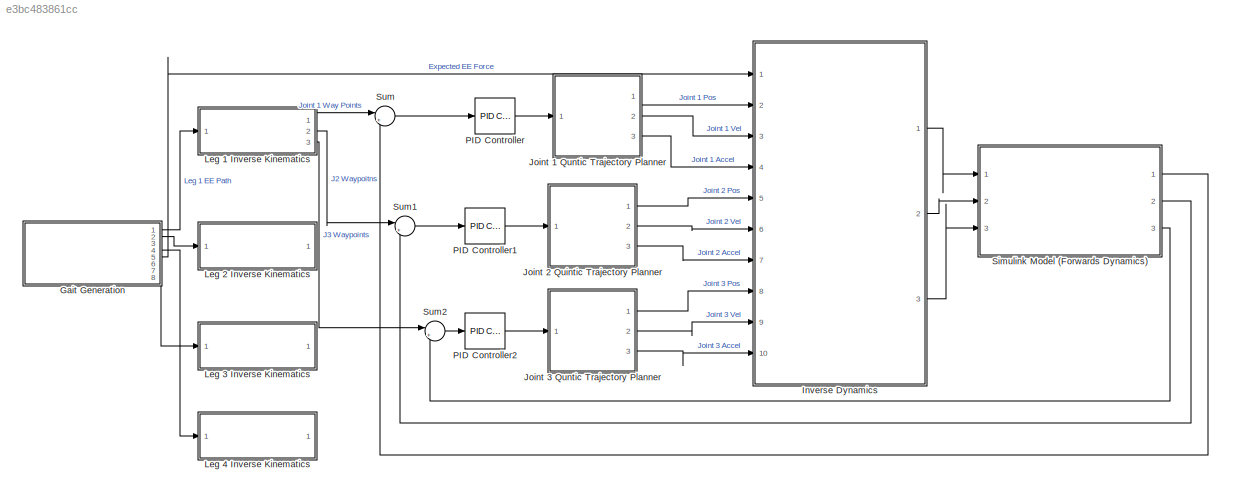
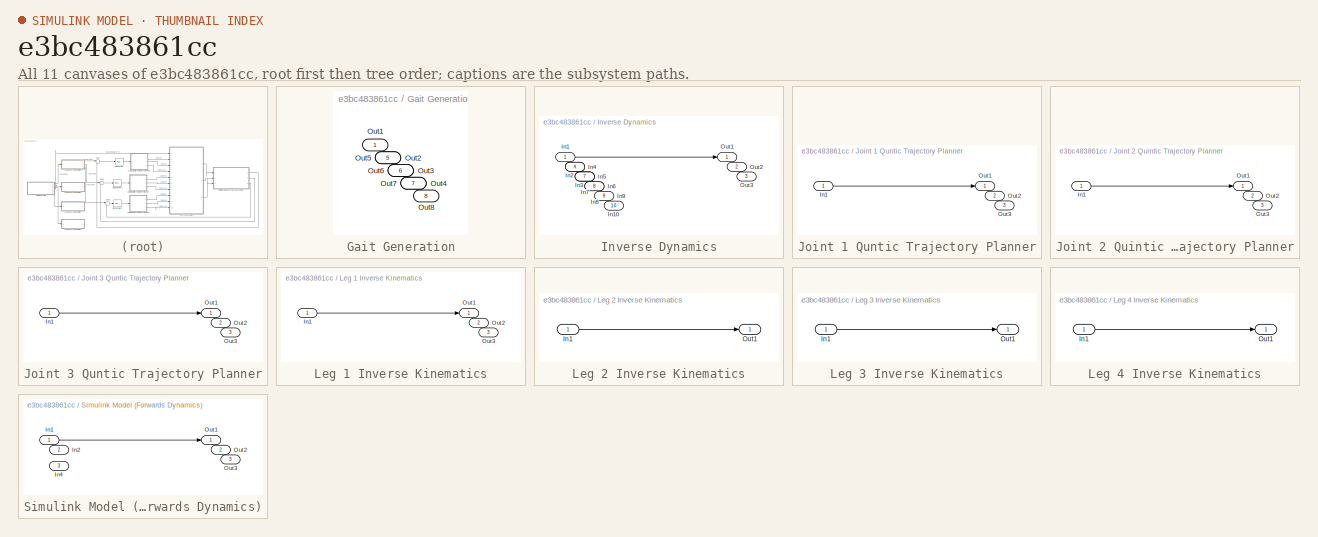
[diagram: thumbnail index - all 11 canvases of the model, root first then tree order]
MODEL slx_e3bc483861cc
KIND model
CONFIG AbsTol = auto
CONFIG EnableMultiTasking = off
CONFIG FixedStep = auto
CONFIG MaxStep = auto
CONFIG MinStep = auto
CONFIG RelTol = 1e-3
CONFIG SampleTimeConstraint = Unconstrained
CONFIG Solver = VariableStepAuto
CONFIG SolverName = VariableStepAuto
CONFIG StartTime = 0.0
CONFIG StopTime = 10.0
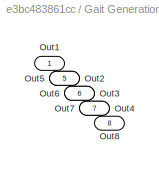
BLOCK [SubSystem] Gait Generation
  Ports = [0, 8]
  RequestExecContextInheritance = off
BLOCK [Outport] Gait Generation/Out1
BLOCK [Outport] Gait Generation/Out2
  Port = 2
BLOCK [Outport] Gait Generation/Out3
  Port = 3
BLOCK [Outport] Gait Generation/Out4
  Port = 4
BLOCK [Outport] Gait Generation/Out5
  Port = 5
BLOCK [Outport] Gait Generation/Out6
  Port = 6
BLOCK [Outport] Gait Generation/Out7
  Port = 7
BLOCK [Outport] Gait Generation/Out8
  Port = 8
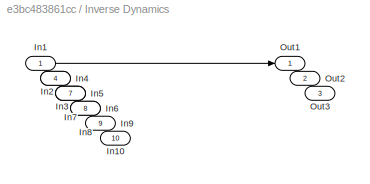
BLOCK [SubSystem] Inverse Dynamics
  Ports = [10, 3]
  RequestExecContextInheritance = off
BLOCK [Inport] Inverse Dynamics/In1
BLOCK [Inport] Inverse Dynamics/In10
  Port = 10
BLOCK [Inport] Inverse Dynamics/In2
  Port = 2
BLOCK [Inport] Inverse Dynamics/In3
  Port = 3
BLOCK [Inport] Inverse Dynamics/In4
  Port = 4
BLOCK [Inport] Inverse Dynamics/In5
  Port = 5
BLOCK [Inport] Inverse Dynamics/In6
  Port = 6
BLOCK [Inport] Inverse Dynamics/In7
  Port = 7
BLOCK [Inport] Inverse Dynamics/In8
  Port = 8
BLOCK [Inport] Inverse Dynamics/In9
  Port = 9
BLOCK [Outport] Inverse Dynamics/Out1
BLOCK [Outport] Inverse Dynamics/Out2
  Port = 2
BLOCK [Outport] Inverse Dynamics/Out3
  Port = 3
BLOCK [SubSystem] Joint 1 Quntic Trajectory Planner
  Ports = [1, 3]
  RequestExecContextInheritance = off
BLOCK [Inport] Joint 1 Quntic Trajectory Planner/In1
BLOCK [Outport] Joint 1 Quntic Trajectory Planner/Out1
BLOCK [Outport] Joint 1 Quntic Trajectory Planner/Out2
  Port = 2
BLOCK [Outport] Joint 1 Quntic Trajectory Planner/Out3
  Port = 3
BLOCK [SubSystem] Joint 2 Quintic Trajectory Planner
  Ports = [1, 3]
  RequestExecContextInheritance = off
BLOCK [Inport] Joint 2 Quintic Trajectory Planner/In1
BLOCK [Outport] Joint 2 Quintic Trajectory Planner/Out1
BLOCK [Outport] Joint 2 Quintic Trajectory Planner/Out2
  Port = 2
BLOCK [Outport] Joint 2 Quintic Trajectory Planner/Out3
  Port = 3
BLOCK [SubSystem] Joint 3 Quntic Trajectory Planner
  Ports = [1, 3]
  RequestExecContextInheritance = off
BLOCK [Inport] Joint 3 Quntic Trajectory Planner/In1
BLOCK [Outport] Joint 3 Quntic Trajectory Planner/Out1
BLOCK [Outport] Joint 3 Quntic Trajectory Planner/Out2
  Port = 2
BLOCK [Outport] Joint 3 Quntic Trajectory Planner/Out3
  Port = 3
BLOCK [SubSystem] Leg 1 Inverse Kinematics
  Ports = [1, 3]
  RequestExecContextInheritance = off
BLOCK [Inport] Leg 1 Inverse Kinematics/In1
BLOCK [Outport] Leg 1 Inverse Kinematics/Out1
BLOCK [Outport] Leg 1 Inverse Kinematics/Out2
  Port = 2
BLOCK [Outport] Leg 1 Inverse Kinematics/Out3
  Port = 3
BLOCK [SubSystem] Leg 2 Inverse Kinematics
  Ports = [1, 1]
  RequestExecContextInheritance = off
BLOCK [Inport] Leg 2 Inverse Kinematics/In1
BLOCK [Outport] Leg 2 Inverse Kinematics/Out1
BLOCK [SubSystem] Leg 3 Inverse Kinematics
  Ports = [1, 1]
  RequestExecContextInheritance = off
BLOCK [Inport] Leg 3 Inverse Kinematics/In1
BLOCK [Outport] Leg 3 Inverse Kinematics/Out1
BLOCK [SubSystem] Leg 4 Inverse Kinematics
  Ports = [1, 1]
  RequestExecContextInheritance = off
BLOCK [Inport] Leg 4 Inverse Kinematics/In1
BLOCK [Outport] Leg 4 Inverse Kinematics/Out1
BLOCK [Reference] PID Controller  REF=simulink/Continuous/PID Controller
  Ports = [1, 1]
  SourceBlock = simulink/Continuous/PID Controller
  SourceProductBaseCode = SL
  SourceType = PID 1dof
BLOCK [Reference] PID Controller1  REF=simulink/Continuous/PID Controller
  Ports = [1, 1]
  SourceBlock = simulink/Continuous/PID Controller
  SourceProductBaseCode = SL
  SourceType = PID 1dof
BLOCK [Reference] PID Controller2  REF=simulink/Continuous/PID Controller
  Ports = [1, 1]
  SourceBlock = simulink/Continuous/PID Controller
  SourceProductBaseCode = SL
  SourceType = PID 1dof
BLOCK [SubSystem] Simulink Model (Forwards Dynamics)
  Ports = [3, 3]
  RequestExecContextInheritance = off
BLOCK [Inport] Simulink Model (Forwards Dynamics)/In1
BLOCK [Inport] Simulink Model (Forwards Dynamics)/In2
  Port = 2
BLOCK [Inport] Simulink Model (Forwards Dynamics)/In4
  Port = 3
BLOCK [Outport] Simulink Model (Forwards Dynamics)/Out1
BLOCK [Outport] Simulink Model (Forwards Dynamics)/Out2
  Port = 2
BLOCK [Outport] Simulink Model (Forwards Dynamics)/Out3
  Port = 3
BLOCK [Sum] Sum
  Inputs = |+-
  Ports = [2, 1]
BLOCK [Sum] Sum1
  Inputs = |+-
  Ports = [2, 1]
BLOCK [Sum] Sum2
  Inputs = |+-
  Ports = [2, 1]
LINE Gait Generation:1 -> Leg 1 Inverse Kinematics:1
LINE Gait Generation:2 -> Leg 2 Inverse Kinematics:1
LINE Gait Generation:3 -> Leg 3 Inverse Kinematics:1
LINE Gait Generation:4 -> Leg 4 Inverse Kinematics:1
LINE Gait Generation:5 -> Inverse Dynamics:1
LINE Inverse Dynamics/In1:1 -> Inverse Dynamics/Out1:1
LINE Inverse Dynamics:1 -> Simulink Model (Forwards Dynamics):1
LINE Inverse Dynamics:2 -> Simulink Model (Forwards Dynamics):2
LINE Inverse Dynamics:3 -> Simulink Model (Forwards Dynamics):3
LINE Joint 1 Quntic Trajectory Planner/In1:1 -> Joint 1 Quntic Trajectory Planner/Out1:1
LINE Joint 1 Quntic Trajectory Planner:1 -> Inverse Dynamics:2
LINE Joint 1 Quntic Trajectory Planner:2 -> Inverse Dynamics:3
LINE Joint 1 Quntic Trajectory Planner:3 -> Inverse Dynamics:4
LINE Joint 2 Quintic Trajectory Planner/In1:1 -> Joint 2 Quintic Trajectory Planner/Out1:1
LINE Joint 2 Quintic Trajectory Planner:1 -> Inverse Dynamics:5
LINE Joint 2 Quintic Trajectory Planner:2 -> Inverse Dynamics:6
LINE Joint 2 Quintic Trajectory Planner:3 -> Inverse Dynamics:7
LINE Joint 3 Quntic Trajectory Planner/In1:1 -> Joint 3 Quntic Trajectory Planner/Out1:1
LINE Joint 3 Quntic Trajectory Planner:1 -> Inverse Dynamics:8
LINE Joint 3 Quntic Trajectory Planner:2 -> Inverse Dynamics:9
LINE Joint 3 Quntic Trajectory Planner:3 -> Inverse Dynamics:10
LINE Leg 1 Inverse Kinematics/In1:1 -> Leg 1 Inverse Kinematics/Out1:1
LINE Leg 1 Inverse Kinematics:1 -> Sum:1
LINE Leg 1 Inverse Kinematics:2 -> Sum1:1
LINE Leg 1 Inverse Kinematics:3 -> Sum2:1
LINE Leg 2 Inverse Kinematics/In1:1 -> Leg 2 Inverse Kinematics/Out1:1
LINE Leg 3 Inverse Kinematics/In1:1 -> Leg 3 Inverse Kinematics/Out1:1
LINE Leg 4 Inverse Kinematics/In1:1 -> Leg 4 Inverse Kinematics/Out1:1
LINE PID Controller1:1 -> Joint 2 Quintic Trajectory Planner:1
LINE PID Controller2:1 -> Joint 3 Quntic Trajectory Planner:1
LINE PID Controller:1 -> Joint 1 Quntic Trajectory Planner:1
LINE Simulink Model (Forwards Dynamics)/In1:1 -> Simulink Model (Forwards Dynamics)/Out1:1
LINE Simulink Model (Forwards Dynamics):1 -> Sum:2
LINE Simulink Model (Forwards Dynamics):2 -> Sum1:2
LINE Simulink Model (Forwards Dynamics):3 -> Sum2:2
LINE Sum1:1 -> PID Controller1:1
LINE Sum2:1 -> PID Controller2:1
LINE Sum:1 -> PID Controller:1
